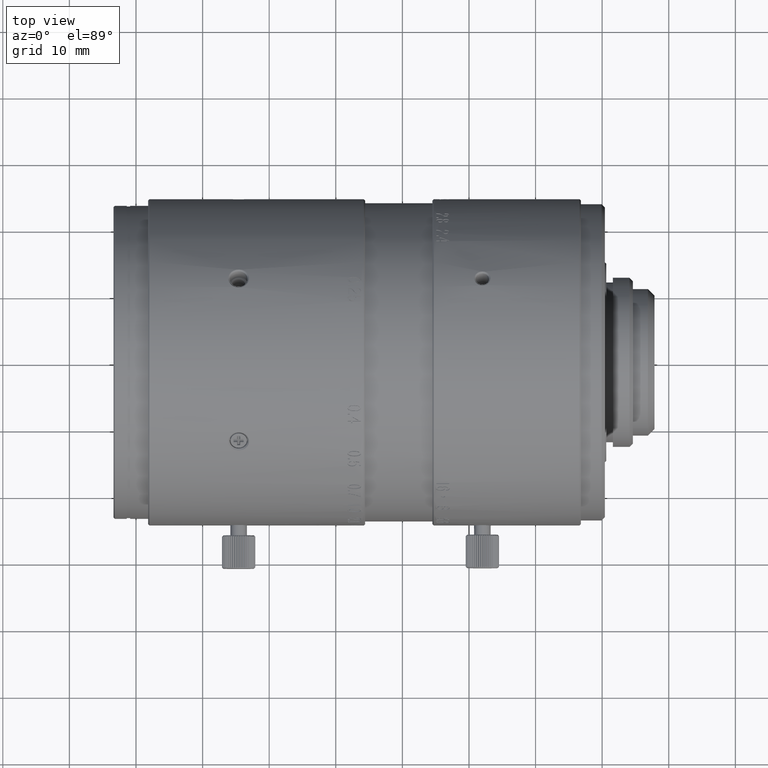
[diagram: clean part render]
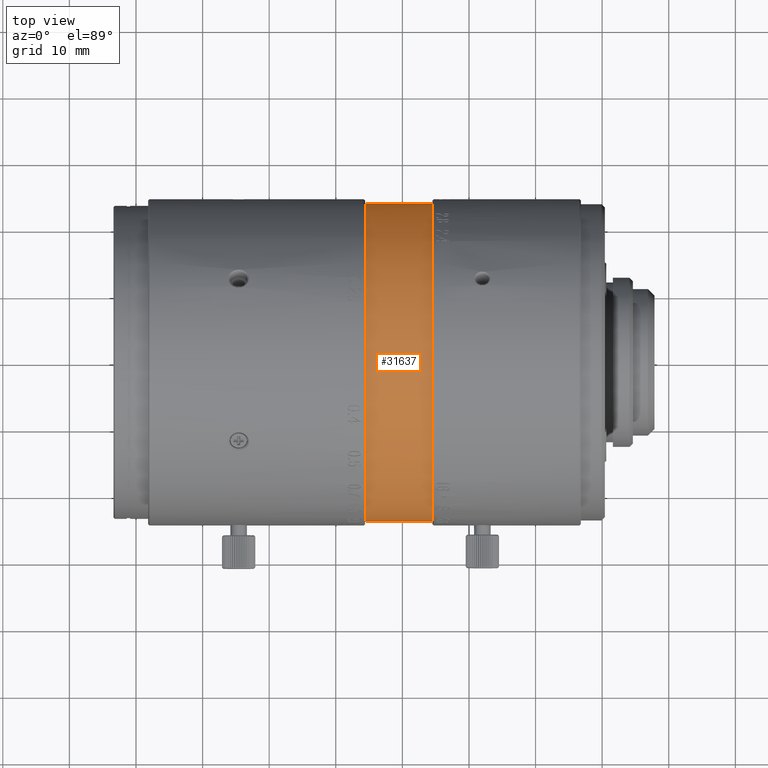
[diagram: same view with one face highlighted and labeled with its STEP entity id]
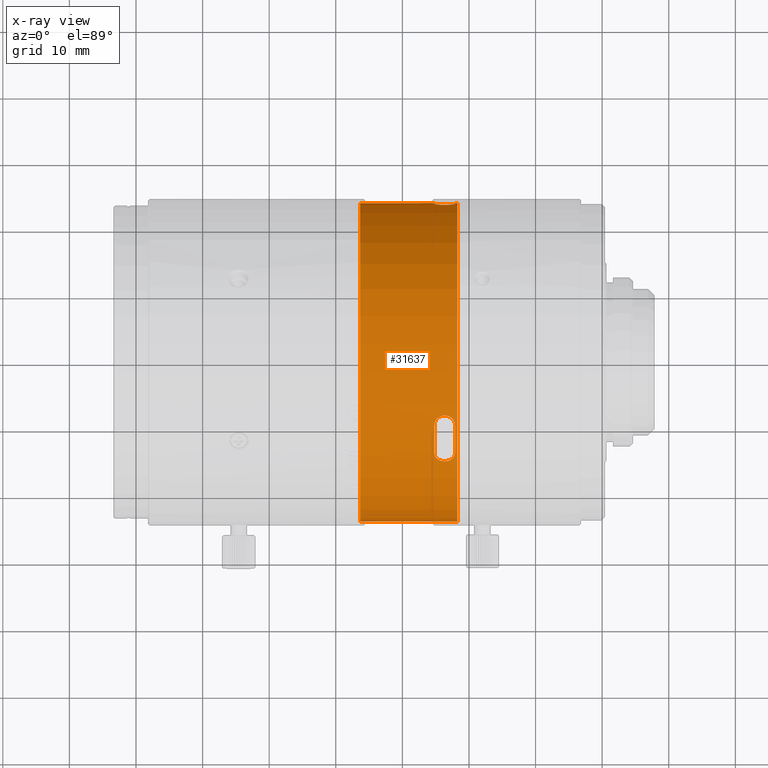
[diagram: x-ray of the same camera — body ghosted, the highlighted face saturated]
A machine part, top view. The second image highlights one B-rep face of the part: STEP entity #31637.
The next image is the same camera in x-ray: the body ghosted, the highlighted face saturated — about 0% of this face is hidden behind the body in this view.
In plain terms, the highlighted cylindrical surface (partial cylindrical patch) has radius 23.9 mm, axis along (-1, 0, 0).
Its self-contained STEP definition (entity closure, byte-faithful):
#211 = EDGE_CURVE ( 'NONE', #2686, #123437, #64755, .T. ) ;
#441 = ORIENTED_EDGE ( 'NONE', *, *, #106925, .F. ) ;
#818 = DIRECTION ( 'NONE',  ( -1.000000000000000000, 0.000000000000000000, 0.000000000000000000 ) ) ;
#1820 = DIRECTION ( 'NONE',  ( -1.000000000000000000, -3.286260152890999533E-13, 0.000000000000000000 ) ) ;
#2201 = AXIS2_PLACEMENT_3D ( 'NONE', #84043, #30902, #19614 ) ;
#2479 = VECTOR ( 'NONE', #94272, 1000.000000000000000 ) ;
#2686 = VERTEX_POINT ( 'NONE', #79570 ) ;
#3116 = DIRECTION ( 'NONE',  ( 0.000000000000000000, -1.000000000000000000, 7.048247992005000373E-11 ) ) ;
#4355 = VERTEX_POINT ( 'NONE', #39222 ) ;
#4554 = AXIS2_PLACEMENT_3D ( 'NONE', #68121, #104825, #94187 ) ;
#5810 = CARTESIAN_POINT ( 'NONE',  ( -22.08699999968000327, 23.89999999998000035, 0.000000000000000000 ) ) ;
#6089 = AXIS2_PLACEMENT_3D ( 'NONE', #45120, #46511, #130074 ) ;
#6227 = CARTESIAN_POINT ( 'NONE',  ( -25.18715889974097877, -9.760017909981630879, 21.81636963568533716 ) ) ;
#6409 = CARTESIAN_POINT ( 'NONE',  ( -27.18699999999999761, 23.90000000000000213, 0.000000000000000000 ) ) ;
#6739 = EDGE_CURVE ( 'NONE', #98657, #50303, #121891, .T. ) ;
#6820 = VERTEX_POINT ( 'NONE', #55653 ) ;
#6935 = CARTESIAN_POINT ( 'NONE',  ( -25.06427563915862322, -9.243202303177355361, 22.04110126728238939 ) ) ;
#7172 = DIRECTION ( 'NONE',  ( 0.000000000000000000, -0.9999649859943872121, 0.008368200836795893979 ) ) ;
#7702 = ORIENTED_EDGE ( 'NONE', *, *, #25858, .F. ) ;
#7956 = CARTESIAN_POINT ( 'NONE',  ( -34.03699999999999903, -23.90000000000000213, -6.668603536747000637E-14 ) ) ;
#8376 = DIRECTION ( 'NONE',  ( -1.000000000000000000, 1.143494140058319939E-09, 2.161971460073095180E-10 ) ) ;
#8391 = ORIENTED_EDGE ( 'NONE', *, *, #104027, .F. ) ;
#8556 = DIRECTION ( 'NONE',  ( 1.000000000000000000, 0.000000000000000000, 0.000000000000000000 ) ) ;
#10406 = ORIENTED_EDGE ( 'NONE', *, *, #211, .T. ) ;
#10754 = CIRCLE ( 'NONE', #19727, 23.90000000000000213 ) ;
#10887 = CARTESIAN_POINT ( 'NONE',  ( -27.18699999999999761, -23.89916316527000006, 0.2000000000000000111 ) ) ;
#11409 = LINE ( 'NONE', #119650, #41594 ) ;
#11496 = CARTESIAN_POINT ( 'NONE',  ( -22.08699999973000061, -13.94213128554999948, 19.41203171280000106 ) ) ;
#11670 = DIRECTION ( 'NONE',  ( -1.000000000000000000, 0.000000000000000000, 0.000000000000000000 ) ) ;
#11766 = ORIENTED_EDGE ( 'NONE', *, *, #29062, .T. ) ;
#11796 = CARTESIAN_POINT ( 'NONE',  ( -22.41513135622106745, 23.66443609528486292, 3.351155929319044269 ) ) ;
#12488 = CARTESIAN_POINT ( 'NONE',  ( -23.06182665026303980, 23.59189834518053175, 3.824964505976278240 ) ) ;
#14153 = VERTEX_POINT ( 'NONE', #78729 ) ;
#15108 = CIRCLE ( 'NONE', #80640, 23.89999999999999503 ) ;
#15467 = CARTESIAN_POINT ( 'NONE',  ( -25.16805924545414541, -9.558126417188496760, 21.90613122974001570 ) ) ;
#15607 = CARTESIAN_POINT ( 'NONE',  ( -23.44539159815399998, -15.18435129621606094, 18.45635430776173891 ) ) ;
#16164 = CARTESIAN_POINT ( 'NONE',  ( -25.18704427927000111, -9.840430533167999982, 21.78012418704999931 ) ) ;
#19518 = B_SPLINE_CURVE_WITH_KNOTS ( 'NONE', 3,
 ( #60677, #124413, #91175, #58603, #135750, #49366, #103184, #27462, #59999, #69938, #36695, #123029, #6935, #15467, #6227, #16164 ),
 .UNSPECIFIED., .F., .F.,
 ( 4, 1, 1, 1, 1, 1, 1, 1, 1, 1, 1, 1, 1, 4 ),
 ( 0.000000000000000000, 0.05626809295589316195, 0.1371401271597698091, 0.2180121613636664957, 0.2988841955675631268, 0.3797562297713598101, 0.4606282639753564445, 0.5415002981791531278, 0.6223723323829497556, 0.7032443665870463656, 0.7841164007909431355, 0.8649884349946397322, 0.9458604691986364221, 1.000000000000000000 ),
 .UNSPECIFIED. ) ;
#19614 = DIRECTION ( 'NONE',  ( 3.134843471454529126E-09, 1.000000000000000000, -2.780751199475000144E-13 ) ) ;
#19727 = AXIS2_PLACEMENT_3D ( 'NONE', #112214, #102281, #135525 ) ;
#22792 = AXIS2_PLACEMENT_3D ( 'NONE', #79530, #11670, #22970 ) ;
#22970 = DIRECTION ( 'NONE',  ( 0.000000000000000000, -1.000000000000000000, -2.508453695805999788E-14 ) ) ;
#23379 = CIRCLE ( 'NONE', #48207, 23.89999999964999589 ) ;
#23790 = CARTESIAN_POINT ( 'NONE',  ( -22.71029453948484544, 23.62257854784916589, 3.632406010073056635 ) ) ;
#24476 = CARTESIAN_POINT ( 'NONE',  ( -23.44539159816405771, 23.57584733979494018, 3.921856808528251026 ) ) ;
#24713 = VECTOR ( 'NONE', #38543, 1000.000000000000000 ) ;
#25546 = CARTESIAN_POINT ( 'NONE',  ( -25.18699999967000025, 23.78237811108000344, 2.368225367377000179 ) ) ;
#25592 = DIRECTION ( 'NONE',  ( 0.000000000000000000, 0.9999649859943872121, 0.008368200836794901717 ) ) ;
#25858 = EDGE_CURVE ( 'NONE', #138773, #77187, #127219, .T. ) ;
#26150 = EDGE_CURVE ( 'NONE', #47775, #93273, #54389, .T. ) ;
#26899 = CARTESIAN_POINT ( 'NONE',  ( -25.07408031757034905, -14.44929441305052897, 19.03855188302160073 ) ) ;
#27462 = CARTESIAN_POINT ( 'NONE',  ( -23.44412549077291885, -8.391509824123218664, 22.37820017973193387 ) ) ;
#27640 = CIRCLE ( 'NONE', #72811, 23.90000000000000213 ) ;
#27886 = CARTESIAN_POINT ( 'NONE',  ( -27.18699999999999761, 23.90000000000000213, 0.000000000000000000 ) ) ;
#29062 = EDGE_CURVE ( 'NONE', #44064, #98657, #105722, .T. ) ;
#29543 = CARTESIAN_POINT ( 'NONE',  ( -21.73699999999999832, 23.90000000000000213, -9.805941050579998445E-10 ) ) ;
#30902 = DIRECTION ( 'NONE',  ( 1.000000000000000000, -3.134843495841949777E-09, 1.751344805159999917E-10 ) ) ;
#31637 = ADVANCED_FACE ( 'NONE', ( #93956, #104597 ), #103883, .T. ) ;
#32336 = CARTESIAN_POINT ( 'NONE',  ( -27.18699999999999761, 23.89916316527000006, 0.1999999999994000188 ) ) ;
#32873 = AXIS2_PLACEMENT_3D ( 'NONE', #95401, #8376, #127263 ) ;
#33344 = CARTESIAN_POINT ( 'NONE',  ( -27.18699999999999761, -23.90000000000000213, 0.000000000000000000 ) ) ;
#33899 = CIRCLE ( 'NONE', #94896, 23.89999999999999503 ) ;
#33939 = B_SPLINE_CURVE_WITH_KNOTS ( 'NONE', 3,
 ( #44325, #132757, #98797, #108743, #99507, #100887, #120742, #78949, #24476, #12488, #23790, #11796, #121424, #77588, #57035, #66974 ),
 .UNSPECIFIED., .F., .F.,
 ( 4, 1, 1, 1, 1, 1, 1, 1, 1, 1, 1, 1, 1, 4 ),
 ( 0.000000000000000000, 0.05268647876620332487, 0.1338003933758361852, 0.2149143079852790239, 0.2960282225949218970, 0.3771421372045648535, 0.4582560518142076988, 0.5393699664237506797, 0.6204838810331934074, 0.7015977956428363083, 0.7827117102524792092, 0.8638256248620220790, 0.9449395394716649799, 1.000000000000000000 ),
 .UNSPECIFIED. ) ;
#36695 = CARTESIAN_POINT ( 'NONE',  ( -24.56874179648492174, -8.669891507609266412, 22.27224278438929872 ) ) ;
#37498 = CARTESIAN_POINT ( 'NONE',  ( -22.08699998135000087, -2.019184876913000133E-10, 3.440057263297999712E-10 ) ) ;
#38543 = DIRECTION ( 'NONE',  ( 1.000000000000000000, -2.574430202029000212E-14, 2.089515494975000202E-10 ) ) ;
#38590 = EDGE_CURVE ( 'NONE', #102966, #6820, #104063, .T. ) ;
#39222 = CARTESIAN_POINT ( 'NONE',  ( -25.18700000000000117, -23.90000000000000213, 1.281837957531000084E-09 ) ) ;
#39925 = LINE ( 'NONE', #104332, #24713 ) ;
#41594 = VECTOR ( 'NONE', #818, 1000.000000000000000 ) ;
#44064 = VERTEX_POINT ( 'NONE', #29543 ) ;
#44325 = CARTESIAN_POINT ( 'NONE',  ( -25.18699999967000025, 23.78237811108000344, 2.368225367377000179 ) ) ;
#44598 = ORIENTED_EDGE ( 'NONE', *, *, #124827, .T. ) ;
#44697 = B_SPLINE_CURVE_WITH_KNOTS ( 'NONE', 3,
 ( #110483, #48829, #80686, #26899, #132417, #112555, #68715, #99867, #15607, #58754, #48146, #91318, #89913, #58056, #101228, #135177 ),
 .UNSPECIFIED., .F., .F.,
 ( 4, 1, 1, 1, 1, 1, 1, 1, 1, 1, 1, 1, 1, 4 ),
 ( 0.000000000000000000, 0.05268917294228365328, 0.1338072354025222621, 0.2149252978625607879, 0.2960433603226992894, 0.3771614227829379051, 0.4582794852430764898, 0.5393975477032151300, 0.6205156101634536903, 0.7016336726234921883, 0.7827517350837307486, 0.8638697975437692467, 0.9449878600040079180, 1.000000000000000000 ),
 .UNSPECIFIED. ) ;
#45120 = CARTESIAN_POINT ( 'NONE',  ( -25.18699996237000249, 1.147916988981999971E-10, -1.536725805224999954E-10 ) ) ;
#45684 = VERTEX_POINT ( 'NONE', #50228 ) ;
#46256 = DIRECTION ( 'NONE',  ( -1.000000000000000000, -8.294634836233849799E-23, -1.176836406102999955E-12 ) ) ;
#46511 = DIRECTION ( 'NONE',  ( -1.000000000000000000, 8.711165268485989652E-10, -1.319637752737326050E-09 ) ) ;
#47273 = VECTOR ( 'NONE', #1820, 1000.000000000000000 ) ;
#47723 = LINE ( 'NONE', #27886, #96591 ) ;
#47775 = VERTEX_POINT ( 'NONE', #33344 ) ;
#48146 = CARTESIAN_POINT ( 'NONE',  ( -22.71029453943451770, -14.95704515562275994, 18.64155012032204439 ) ) ;
#48178 = ORIENTED_EDGE ( 'NONE', *, *, #6739, .T. ) ;
#48207 = AXIS2_PLACEMENT_3D ( 'NONE', #37498, #70757, #60106 ) ;
#48349 = EDGE_CURVE ( 'NONE', #127362, #44064, #27640, .T. ) ;
#48829 = CARTESIAN_POINT ( 'NONE',  ( -25.18710538564845081, -14.00822806778116281, 19.36441290505987567 ) ) ;
#49366 = CARTESIAN_POINT ( 'NONE',  ( -22.71318828500535503, -8.664405682359619831, 22.27437022681606749 ) ) ;
#50016 = CARTESIAN_POINT ( 'NONE',  ( -36.33700000000000330, -23.90000000000000213, 2.002740092834000024E-09 ) ) ;
#50091 = CARTESIAN_POINT ( 'NONE',  ( -29.03699999999999903, 0.000000000000000000, 5.995204332976000819E-13 ) ) ;
#50228 = CARTESIAN_POINT ( 'NONE',  ( -22.08700000017999798, -9.840227038334001364, 21.78026473291999920 ) ) ;
#50303 = VERTEX_POINT ( 'NONE', #93545 ) ;
#50405 = LINE ( 'NONE', #7956, #2479 ) ;
#51926 = DIRECTION ( 'NONE',  ( -1.000000000000000000, -1.628766962835000150E-10, 2.801786782722999815E-09 ) ) ;
#52411 = CARTESIAN_POINT ( 'NONE',  ( -25.18700000000000117, 0.000000000000000000, 5.995204332976000819E-13 ) ) ;
#53523 = EDGE_LOOP ( 'NONE', ( #53906, #135310, #82847, #59894 ) ) ;
#53906 = ORIENTED_EDGE ( 'NONE', *, *, #93676, .F. ) ;
#54389 = CIRCLE ( 'NONE', #22792, 23.90000000000000213 ) ;
#55572 = CARTESIAN_POINT ( 'NONE',  ( -25.18700000000000117, -23.89916316527000006, 0.2000000000000000111 ) ) ;
#55653 = CARTESIAN_POINT ( 'NONE',  ( -36.33700000000000330, 23.90000000000000213, -9.806261377165000116E-10 ) ) ;
#56314 = EDGE_CURVE ( 'NONE', #118454, #77187, #71373, .T. ) ;
#56856 = CARTESIAN_POINT ( 'NONE',  ( -34.03699999999999903, -23.90000000000000213, -6.668603536747000637E-14 ) ) ;
#57035 = CARTESIAN_POINT ( 'NONE',  ( -22.08686151817601484, 23.77386548430432356, 2.452555840577468782 ) ) ;
#58056 = CARTESIAN_POINT ( 'NONE',  ( -22.10451746707995468, -14.18410628458187439, 19.23658252180724304 ) ) ;
#58603 = CARTESIAN_POINT ( 'NONE',  ( -22.21390696020917588, -9.234737435551126694, 22.04464163788088982 ) ) ;
#58754 = CARTESIAN_POINT ( 'NONE',  ( -23.06182665023020917, -15.10846560345750689, 18.51870103744936813 ) ) ;
#59015 = EDGE_CURVE ( 'NONE', #45684, #69767, #19518, .T. ) ;
#59221 = VECTOR ( 'NONE', #51926, 1000.000000000000000 ) ;
#59894 = ORIENTED_EDGE ( 'NONE', *, *, #99060, .T. ) ;
#59953 = EDGE_CURVE ( 'NONE', #14153, #117247, #10754, .T. ) ;
#59999 = CARTESIAN_POINT ( 'NONE',  ( -23.83975090979344102, -8.392700870557408876, 22.37775546607971222 ) ) ;
#60090 = CARTESIAN_POINT ( 'NONE',  ( -36.33700000000000330, -23.90000000000000213, 2.002740092834000024E-09 ) ) ;
#60106 = DIRECTION ( 'NONE',  ( -7.880210024842530695E-10, -0.4117249806811060786, 0.9113081478200131258 ) ) ;
#60677 = CARTESIAN_POINT ( 'NONE',  ( -22.08700000017999798, -9.840227038334001364, 21.78026473291999920 ) ) ;
#64755 = CIRCLE ( 'NONE', #87383, 23.89999999999999503 ) ;
#66974 = CARTESIAN_POINT ( 'NONE',  ( -22.08695988882999828, 23.78236178041000315, 2.367984408047000500 ) ) ;
#67412 = ORIENTED_EDGE ( 'NONE', *, *, #112651, .T. ) ;
#68121 = CARTESIAN_POINT ( 'NONE',  ( -36.33699999998999886, 0.000000000000000000, 5.995204332976000819E-13 ) ) ;
#68214 = CARTESIAN_POINT ( 'NONE',  ( -21.73699999999000099, 0.000000000000000000, -2.169819879313000156E-12 ) ) ;
#68395 = VERTEX_POINT ( 'NONE', #11496 ) ;
#68715 = CARTESIAN_POINT ( 'NONE',  ( -24.22210584288986013, -15.10537478433784919, 18.52122920509529536 ) ) ;
#69767 = VERTEX_POINT ( 'NONE', #103126 ) ;
#69938 = CARTESIAN_POINT ( 'NONE',  ( -24.22301664304932700, -8.487653578726028769, 22.34206334407752692 ) ) ;
#70035 = DIRECTION ( 'NONE',  ( 1.000000000000000000, 4.026408835970999896E-13, -2.937241114223999726E-09 ) ) ;
#70502 = VERTEX_POINT ( 'NONE', #135711 ) ;
#70757 = DIRECTION ( 'NONE',  ( 1.000000000000000000, -3.086864116466385421E-10, 7.252509745513819587E-10 ) ) ;
#70911 = CARTESIAN_POINT ( 'NONE',  ( -25.18699999997999939, 23.89916316528999829, 0.1999999999998000044 ) ) ;
#71062 = EDGE_CURVE ( 'NONE', #123437, #47775, #50405, .T. ) ;
#71373 = CIRCLE ( 'NONE', #32873, 23.90000000032000216 ) ;
#72811 = AXIS2_PLACEMENT_3D ( 'NONE', #68214, #46256, #3116 ) ;
#74568 = AXIS2_PLACEMENT_3D ( 'NONE', #50091, #84065, #93271 ) ;
#77187 = VERTEX_POINT ( 'NONE', #70911 ) ;
#77588 = CARTESIAN_POINT ( 'NONE',  ( -22.10449399277740312, 23.75143174061823004, 2.665425427179331841 ) ) ;
#78729 = CARTESIAN_POINT ( 'NONE',  ( -36.03699999999999903, -23.90000000000000213, 0.000000000000000000 ) ) ;
#78949 = CARTESIAN_POINT ( 'NONE',  ( -23.83919850804656804, 23.57607127009602621, 3.920522098834107627 ) ) ;
#79530 = CARTESIAN_POINT ( 'NONE',  ( -27.18699999999999761, 0.000000000000000000, 5.995204332976000819E-13 ) ) ;
#79570 = CARTESIAN_POINT ( 'NONE',  ( -34.03699999999999903, -23.89916316527000006, 0.2000000000000000111 ) ) ;
#80640 = AXIS2_PLACEMENT_3D ( 'NONE', #90688, #101288, #25592 ) ;
#80686 = CARTESIAN_POINT ( 'NONE',  ( -25.17044604100712135, -14.17847070082510896, 19.24071026548222463 ) ) ;
#82437 = ORIENTED_EDGE ( 'NONE', *, *, #56314, .T. ) ;
#82532 = CARTESIAN_POINT ( 'NONE',  ( -25.18700000000000117, -23.89916316527000006, 0.2000000000000000111 ) ) ;
#82847 = ORIENTED_EDGE ( 'NONE', *, *, #59015, .F. ) ;
#84043 = CARTESIAN_POINT ( 'NONE',  ( -22.08700007459999881, -4.600015805604000490E-10, 6.648611466571000400E-12 ) ) ;
#84065 = DIRECTION ( 'NONE',  ( -1.000000000000000000, 0.000000000000000000, 0.000000000000000000 ) ) ;
#87059 = ORIENTED_EDGE ( 'NONE', *, *, #59953, .T. ) ;
#87383 = AXIS2_PLACEMENT_3D ( 'NONE', #92728, #114662, #115361 ) ;
#88363 = ORIENTED_EDGE ( 'NONE', *, *, #38590, .F. ) ;
#89913 = CARTESIAN_POINT ( 'NONE',  ( -22.20424679371813426, -14.45720557101923909, 19.03253763264507725 ) ) ;
#90688 = CARTESIAN_POINT ( 'NONE',  ( -27.18699999999999761, 0.000000000000000000, 5.995204332976000819E-13 ) ) ;
#91175 = CARTESIAN_POINT ( 'NONE',  ( -22.10697350072021550, -9.551893272664408130, 21.90887093263292229 ) ) ;
#91318 = CARTESIAN_POINT ( 'NONE',  ( -22.41513135614856722, -14.73440421457596372, 18.81842486012531168 ) ) ;
#92728 = CARTESIAN_POINT ( 'NONE',  ( -34.03699999999999903, 0.000000000000000000, 5.995204332976000819E-13 ) ) ;
#93271 = DIRECTION ( 'NONE',  ( 0.000000000000000000, -1.000000000000000000, -2.508453695805999788E-14 ) ) ;
#93273 = VERTEX_POINT ( 'NONE', #10887 ) ;
#93545 = CARTESIAN_POINT ( 'NONE',  ( -22.08695988882999828, 23.78236178041000315, 2.367984408047000500 ) ) ;
#93676 = EDGE_CURVE ( 'NONE', #70502, #68395, #44697, .T. ) ;
#93956 = FACE_OUTER_BOUND ( 'NONE', #130572, .T. ) ;
#94187 = DIRECTION ( 'NONE',  ( 0.000000000000000000, -1.000000000000000000, 7.036616385122000632E-11 ) ) ;
#94272 = DIRECTION ( 'NONE',  ( 1.000000000000000000, 0.000000000000000000, 0.000000000000000000 ) ) ;
#94896 = AXIS2_PLACEMENT_3D ( 'NONE', #52411, #8556, #7172 ) ;
#95401 = CARTESIAN_POINT ( 'NONE',  ( -25.18700002738000165, -1.332054153650000054E-10, 3.455803027272000193E-11 ) ) ;
#96591 = VECTOR ( 'NONE', #134082, 1000.000000000000000 ) ;
#98657 = VERTEX_POINT ( 'NONE', #5810 ) ;
#98704 = CARTESIAN_POINT ( 'NONE',  ( -27.18699999999999761, 23.89916316527000006, 0.2000000000000000111 ) ) ;
#98797 = CARTESIAN_POINT ( 'NONE',  ( -25.17044604092115634, 23.75217922709733287, 2.658560680953953259 ) ) ;
#99060 = EDGE_CURVE ( 'NONE', #45684, #68395, #23379, .T. ) ;
#99421 = ORIENTED_EDGE ( 'NONE', *, *, #132247, .T. ) ;
#99507 = CARTESIAN_POINT ( 'NONE',  ( -24.86557205316486829, 23.66562993613440824, 3.342773278773179424 ) ) ;
#99867 = CARTESIAN_POINT ( 'NONE',  ( -23.83919850805372320, -15.18330736886474064, 18.45721559192620731 ) ) ;
#100887 = CARTESIAN_POINT ( 'NONE',  ( -24.57232876010272093, 23.62356127006404449, 3.626060952107862612 ) ) ;
#101228 = CARTESIAN_POINT ( 'NONE',  ( -22.08687476641100389, -14.01103842744645256, 19.36239901192962165 ) ) ;
#101288 = DIRECTION ( 'NONE',  ( -1.000000000000000000, 0.000000000000000000, 0.000000000000000000 ) ) ;
#102281 = DIRECTION ( 'NONE',  ( -1.000000000000000000, 0.000000000000000000, 0.000000000000000000 ) ) ;
#102966 = VERTEX_POINT ( 'NONE', #50016 ) ;
#103126 = CARTESIAN_POINT ( 'NONE',  ( -25.18704427927000111, -9.840430533167999982, 21.78012418704999931 ) ) ;
#103184 = CARTESIAN_POINT ( 'NONE',  ( -23.06017691828694893, -8.484180222389595016, 22.34337728018828528 ) ) ;
#103268 = CIRCLE ( 'NONE', #6089, 23.90000000012001280 ) ;
#103883 = CYLINDRICAL_SURFACE ( 'NONE', #74568, 23.90000000000000213 ) ;
#104027 = EDGE_CURVE ( 'NONE', #118454, #50303, #33939, .T. ) ;
#104063 = CIRCLE ( 'NONE', #4554, 23.90000000000000213 ) ;
#104179 = CARTESIAN_POINT ( 'NONE',  ( -21.73699999999999832, -23.90000000000000213, 2.002720803296999785E-09 ) ) ;
#104332 = CARTESIAN_POINT ( 'NONE',  ( -25.18700000000000117, -23.90000000000000213, 1.281837957531000084E-09 ) ) ;
#104597 = FACE_BOUND ( 'NONE', #53523, .T. ) ;
#104825 = DIRECTION ( 'NONE',  ( -1.000000000000000000, 0.000000000000000000, 0.000000000000000000 ) ) ;
#105397 = ORIENTED_EDGE ( 'NONE', *, *, #71062, .T. ) ;
#105722 = LINE ( 'NONE', #114267, #59221 ) ;
#106014 = ORIENTED_EDGE ( 'NONE', *, *, #121550, .F. ) ;
#106925 = EDGE_CURVE ( 'NONE', #2686, #117247, #11409, .T. ) ;
#108743 = CARTESIAN_POINT ( 'NONE',  ( -25.07408031748843769, 23.71251678841221278, 2.994180086901438109 ) ) ;
#110483 = CARTESIAN_POINT ( 'NONE',  ( -25.18700000013000206, -13.94213238548999989, 19.41203092264999697 ) ) ;
#111090 = ORIENTED_EDGE ( 'NONE', *, *, #48349, .T. ) ;
#112214 = CARTESIAN_POINT ( 'NONE',  ( -36.03699999999999903, 0.000000000000000000, 5.995204332976000819E-13 ) ) ;
#112555 = CARTESIAN_POINT ( 'NONE',  ( -24.57232876015597256, -14.95204153533524050, 18.64557371170896971 ) ) ;
#112651 = EDGE_CURVE ( 'NONE', #138773, #119635, #15108, .T. ) ;
#114267 = CARTESIAN_POINT ( 'NONE',  ( -21.73699999999999832, 23.90000000000000213, -9.805941050579998445E-10 ) ) ;
#114411 = VERTEX_POINT ( 'NONE', #82532 ) ;
#114592 = LINE ( 'NONE', #60090, #124823 ) ;
#114662 = DIRECTION ( 'NONE',  ( 1.000000000000000000, 0.000000000000000000, 0.000000000000000000 ) ) ;
#115095 = ORIENTED_EDGE ( 'NONE', *, *, #131293, .T. ) ;
#115361 = DIRECTION ( 'NONE',  ( 0.000000000000000000, -0.9999649859943872121, 0.008368200836794901717 ) ) ;
#116647 = EDGE_CURVE ( 'NONE', #70502, #69767, #103268, .T. ) ;
#117151 = EDGE_CURVE ( 'NONE', #119635, #6820, #47723, .T. ) ;
#117247 = VERTEX_POINT ( 'NONE', #129560 ) ;
#118454 = VERTEX_POINT ( 'NONE', #25546 ) ;
#119635 = VERTEX_POINT ( 'NONE', #6409 ) ;
#119650 = CARTESIAN_POINT ( 'NONE',  ( -34.03699999999999903, -23.89916316527000006, 0.2000000000000000111 ) ) ;
#120678 = LINE ( 'NONE', #55572, #47273 ) ;
#120742 = CARTESIAN_POINT ( 'NONE',  ( -24.22210584285868507, 23.59254239301815304, 3.821023694276210136 ) ) ;
#121424 = CARTESIAN_POINT ( 'NONE',  ( -22.20424679380001010, 23.71126387377971412, 3.004038475867218949 ) ) ;
#121550 = EDGE_CURVE ( 'NONE', #114411, #93273, #120678, .T. ) ;
#121891 = CIRCLE ( 'NONE', #2201, 23.90000000043999862 ) ;
#123029 = CARTESIAN_POINT ( 'NONE',  ( -24.85530633878775930, -8.927404324523747547, 22.17058357935437130 ) ) ;
#123437 = VERTEX_POINT ( 'NONE', #56856 ) ;
#124413 = CARTESIAN_POINT ( 'NONE',  ( -22.08684096930949892, -9.756752512028231905, 21.81784701480826527 ) ) ;
#124823 = VECTOR ( 'NONE', #70035, 1000.000000000000000 ) ;
#124827 = EDGE_CURVE ( 'NONE', #102966, #14153, #114592, .T. ) ;
#127219 = LINE ( 'NONE', #32336, #131298 ) ;
#127263 = DIRECTION ( 'NONE',  ( 1.159289278923491365E-09, 0.9950785820458599717, 0.09908892750252600023 ) ) ;
#127362 = VERTEX_POINT ( 'NONE', #104179 ) ;
#129560 = CARTESIAN_POINT ( 'NONE',  ( -36.03699999999999903, -23.89916316527000006, 0.2000000000000000111 ) ) ;
#130018 = DIRECTION ( 'NONE',  ( 1.000000000000000000, 1.107025582301999956E-11, 1.887101586085999986E-13 ) ) ;
#130074 = DIRECTION ( 'NONE',  ( -1.580002981068496248E-09, -0.5833528194785777554, 0.8122188670588696979 ) ) ;
#130572 = EDGE_LOOP ( 'NONE', ( #138159, #88363, #44598, #87059, #441, #10406, #105397, #132845, #106014, #99421, #115095, #111090, #11766, #48178, #8391, #82437, #7702, #67412 ) ) ;
#131293 = EDGE_CURVE ( 'NONE', #4355, #127362, #39925, .T. ) ;
#131298 = VECTOR ( 'NONE', #130018, 1000.000000000000000 ) ;
#132247 = EDGE_CURVE ( 'NONE', #114411, #4355, #33899, .T. ) ;
#132417 = CARTESIAN_POINT ( 'NONE',  ( -24.86557205323963871, -14.72774154666629798, 18.82365008189293221 ) ) ;
#132757 = CARTESIAN_POINT ( 'NONE',  ( -25.18710538556894818, 23.77418753894189507, 2.449274916144726255 ) ) ;
#132845 = ORIENTED_EDGE ( 'NONE', *, *, #26150, .T. ) ;
#134082 = DIRECTION ( 'NONE',  ( -1.000000000000000000, 0.000000000000000000, -1.071723507903000050E-10 ) ) ;
#135177 = CARTESIAN_POINT ( 'NONE',  ( -22.08699999973000061, -13.94213128554999948, 19.41203171280000106 ) ) ;
#135310 = ORIENTED_EDGE ( 'NONE', *, *, #116647, .T. ) ;
#135525 = DIRECTION ( 'NONE',  ( 0.000000000000000000, -1.000000000000000000, -2.508453695805999788E-14 ) ) ;
#135711 = CARTESIAN_POINT ( 'NONE',  ( -25.18700000013000206, -13.94213238548999989, 19.41203092264999697 ) ) ;
#135750 = CARTESIAN_POINT ( 'NONE',  ( -22.42491229962623933, -8.920258667504675998, 22.17345184304365091 ) ) ;
#138159 = ORIENTED_EDGE ( 'NONE', *, *, #117151, .T. ) ;
#138773 = VERTEX_POINT ( 'NONE', #98704 ) ;